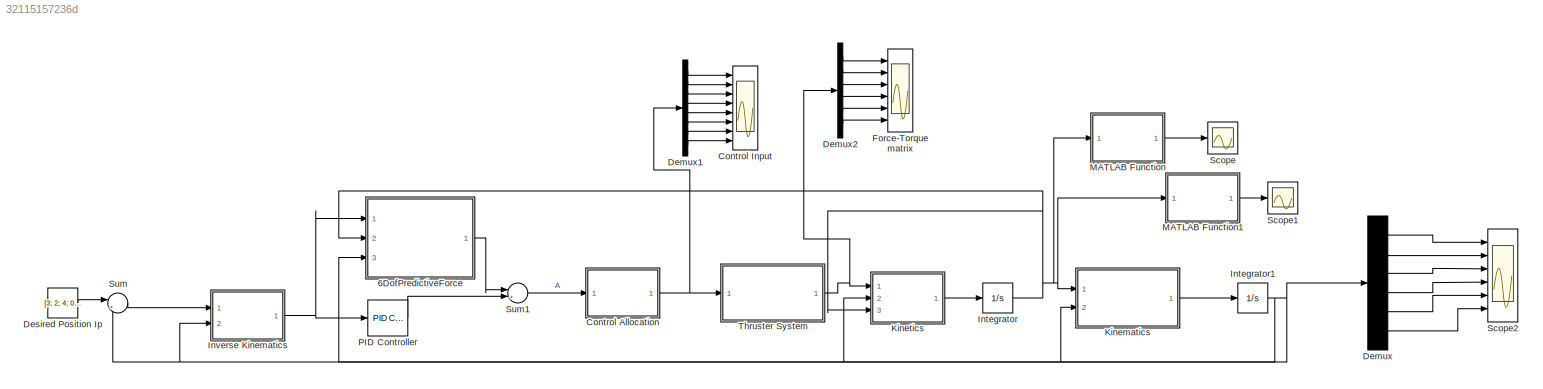
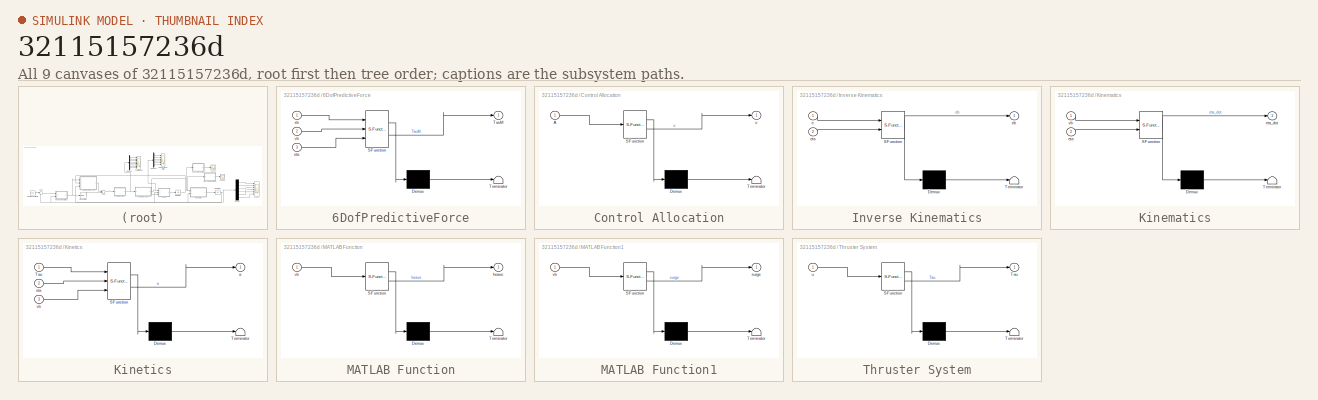
[diagram: thumbnail index - all 9 canvases of the model, root first then tree order]
MODEL slx_32115157236d
KIND model
CONFIG AbsTol = auto
CONFIG EnableMultiTasking = off
CONFIG FixedStep = auto
CONFIG MaxStep = auto
CONFIG MinStep = auto
CONFIG RelTol = 1e-3
CONFIG SampleTimeConstraint = Unconstrained
CONFIG SolverName = VariableStepAuto
CONFIG StartTime = 0.0
CONFIG StopTime = 200
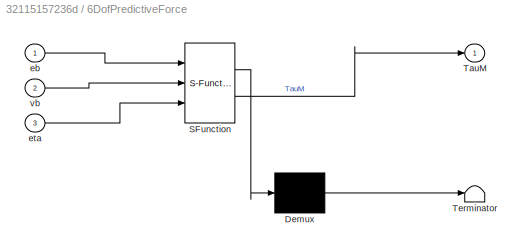
BLOCK [SubSystem] 6DofPredictiveForce
  ErrorFcn = Stateflow.Translate.translate
  PermitHierarchicalResolution = ExplicitOnly
  Ports = [3, 1]
  RequestExecContextInheritance = off
  SFBlockType = MATLAB Function
  TreatAsAtomicUnit = on
BLOCK [Demux] 6DofPredictiveForce/ Demux 
  Outputs = 1
  Ports = [1, 1]
BLOCK [S-Function] 6DofPredictiveForce/ SFunction 
  EnableBusSupport = on
  FunctionName = sf_sfun
  PortCounts = [3 2]
  Ports = [3, 2]
  SFcnIsStateOwnerBlock = off
  SFunctionDeploymentMode = off
  Tag = Stateflow S-Function 5
BLOCK [Terminator] 6DofPredictiveForce/ Terminator 
BLOCK [Outport] 6DofPredictiveForce/TauM
BLOCK [Inport] 6DofPredictiveForce/eb
BLOCK [Inport] 6DofPredictiveForce/eta
  Port = 3
BLOCK [Inport] 6DofPredictiveForce/vb
  Port = 2
BLOCK [SubSystem] Control Allocation
  ErrorFcn = Stateflow.Translate.translate
  PermitHierarchicalResolution = ExplicitOnly
  Ports = [1, 1]
  RequestExecContextInheritance = off
  SFBlockType = MATLAB Function
  TreatAsAtomicUnit = on
BLOCK [Demux] Control Allocation/ Demux 
  Outputs = 1
  Ports = [1, 1]
BLOCK [S-Function] Control Allocation/ SFunction 
  EnableBusSupport = on
  FunctionName = sf_sfun
  PortCounts = [1 2]
  Ports = [1, 2]
  SFcnIsStateOwnerBlock = off
  SFunctionDeploymentMode = off
  Tag = Stateflow S-Function 6
BLOCK [Terminator] Control Allocation/ Terminator 
BLOCK [Inport] Control Allocation/A
BLOCK [Outport] Control Allocation/u
BLOCK [Scope] Control Input
  Floating = off
  NumInputPorts = 8
  Ports = [8]
  ScopeSpecificationString = Simulink.scopes.TimeScopeBlockCfg('CurrentConfiguration', extmgr.ConfigurationSet(extmgr.Configuration('Core','General UI',true),extmgr.Configuration('Core','Source UI',true),extmgr.Configuration('Sources','WiredSimulink',true,'DataLoggingVariableName','ScopeData6'),extmgr.Configuration('Visuals','Time Domain',true,'SerializedDisplays',{struct('MinYLimReal','-0.19133','MaxYLimReal','0.13169','YLab...<+6221ch>
BLOCK [Demux] Demux
  Outputs = 6
  Ports = [1, 6]
BLOCK [Demux] Demux1
  Outputs = 8
  Ports = [1, 8]
BLOCK [Demux] Demux2
  Outputs = 6
  Ports = [1, 6]
BLOCK [Constant] Desired Position Ip
  Value = [3; 2; 4; 0; 0; 0]
BLOCK [Scope] Force-Torque matrix
  Floating = off
  NumInputPorts = 6
  Ports = [6]
  ScopeSpecificationString = Simulink.scopes.TimeScopeBlockCfg('CurrentConfiguration', extmgr.ConfigurationSet(extmgr.Configuration('Core','General UI',true),extmgr.Configuration('Core','Source UI',true),extmgr.Configuration('Sources','WiredSimulink',true,'DataLoggingVariableName','ScopeData1'),extmgr.Configuration('Visuals','Time Domain',true,'SerializedDisplays',{struct('MinYLimReal','-0.19133','MaxYLimReal','0.13169','YLab...<+4815ch>
BLOCK [Integrator] Integrator
  InitialCondition = [0;0;0;0;0;0]
  Ports = [1, 1]
BLOCK [Integrator] Integrator1
  InitialCondition = [0;0;0;0;0;0]
  Ports = [1, 1]
BLOCK [SubSystem] Inverse Kinematics
  ErrorFcn = Stateflow.Translate.translate
  PermitHierarchicalResolution = ExplicitOnly
  Ports = [2, 1]
  RequestExecContextInheritance = off
  SFBlockType = MATLAB Function
  TreatAsAtomicUnit = on
BLOCK [Demux] Inverse Kinematics/ Demux 
  Outputs = 1
  Ports = [1, 1]
BLOCK [S-Function] Inverse Kinematics/ SFunction 
  EnableBusSupport = on
  FunctionName = sf_sfun
  PortCounts = [2 2]
  Ports = [2, 2]
  SFcnIsStateOwnerBlock = off
  SFunctionDeploymentMode = off
  Tag = Stateflow S-Function 4
BLOCK [Terminator] Inverse Kinematics/ Terminator 
BLOCK [Inport] Inverse Kinematics/e
BLOCK [Outport] Inverse Kinematics/eb
BLOCK [Inport] Inverse Kinematics/eta
  Port = 2
BLOCK [SubSystem] Kinematics
  ErrorFcn = Stateflow.Translate.translate
  PermitHierarchicalResolution = ExplicitOnly
  Ports = [2, 1]
  RequestExecContextInheritance = off
  SFBlockType = MATLAB Function
  TreatAsAtomicUnit = on
BLOCK [Demux] Kinematics/ Demux 
  Outputs = 1
  Ports = [1, 1]
BLOCK [S-Function] Kinematics/ SFunction 
  EnableBusSupport = on
  FunctionName = sf_sfun
  PortCounts = [2 2]
  Ports = [2, 2]
  SFcnIsStateOwnerBlock = off
  SFunctionDeploymentMode = off
  Tag = Stateflow S-Function 3
BLOCK [Terminator] Kinematics/ Terminator 
BLOCK [Inport] Kinematics/eta
  Port = 2
BLOCK [Outport] Kinematics/eta_dot
BLOCK [Inport] Kinematics/vb
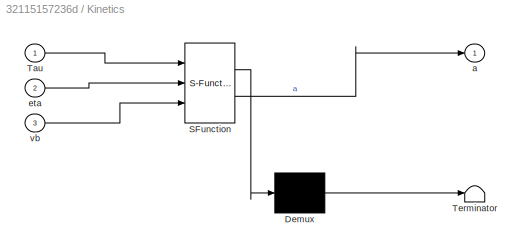
BLOCK [SubSystem] Kinetics
  ErrorFcn = Stateflow.Translate.translate
  PermitHierarchicalResolution = ExplicitOnly
  Ports = [3, 1]
  RequestExecContextInheritance = off
  SFBlockType = MATLAB Function
  TreatAsAtomicUnit = on
BLOCK [Demux] Kinetics/ Demux 
  Outputs = 1
  Ports = [1, 1]
BLOCK [S-Function] Kinetics/ SFunction 
  EnableBusSupport = on
  FunctionName = sf_sfun
  PortCounts = [3 2]
  Ports = [3, 2]
  SFcnIsStateOwnerBlock = off
  SFunctionDeploymentMode = off
  Tag = Stateflow S-Function 1
BLOCK [Terminator] Kinetics/ Terminator 
BLOCK [Inport] Kinetics/Tau
BLOCK [Outport] Kinetics/a
BLOCK [Inport] Kinetics/eta
  Port = 2
BLOCK [Inport] Kinetics/vb
  Port = 3
BLOCK [SubSystem] MATLAB Function
  ErrorFcn = Stateflow.Translate.translate
  PermitHierarchicalResolution = ExplicitOnly
  Ports = [1, 1]
  RequestExecContextInheritance = off
  SFBlockType = MATLAB Function
  TreatAsAtomicUnit = on
BLOCK [Demux] MATLAB Function/ Demux 
  Outputs = 1
  Ports = [1, 1]
BLOCK [S-Function] MATLAB Function/ SFunction 
  EnableBusSupport = on
  FunctionName = sf_sfun
  PortCounts = [1 2]
  Ports = [1, 2]
  SFcnIsStateOwnerBlock = off
  SFunctionDeploymentMode = off
  Tag = Stateflow S-Function 7
BLOCK [Terminator] MATLAB Function/ Terminator 
BLOCK [Outport] MATLAB Function/heave
BLOCK [Inport] MATLAB Function/vb
BLOCK [SubSystem] MATLAB Function1
  ErrorFcn = Stateflow.Translate.translate
  PermitHierarchicalResolution = ExplicitOnly
  Ports = [1, 1]
  RequestExecContextInheritance = off
  SFBlockType = MATLAB Function
  TreatAsAtomicUnit = on
BLOCK [Demux] MATLAB Function1/ Demux 
  Outputs = 1
  Ports = [1, 1]
BLOCK [S-Function] MATLAB Function1/ SFunction 
  EnableBusSupport = on
  FunctionName = sf_sfun
  PortCounts = [1 2]
  Ports = [1, 2]
  SFcnIsStateOwnerBlock = off
  SFunctionDeploymentMode = off
  Tag = Stateflow S-Function 8
BLOCK [Terminator] MATLAB Function1/ Terminator 
BLOCK [Outport] MATLAB Function1/surge
BLOCK [Inport] MATLAB Function1/vb
BLOCK [Reference] PID Controller  REF=slpidlib/PID Controller
  Ports = [1, 1]
  SourceBlock = slpidlib/PID Controller
  SourceProductBaseCode = SL
  SourceType = PID 1dof
BLOCK [Scope] Scope
  Floating = off
  NumInputPorts = 1
  Ports = [1]
  ScopeSpecificationString = Simulink.scopes.TimeScopeBlockCfg('CurrentConfiguration', extmgr.ConfigurationSet(extmgr.Configuration('Core','General UI',true),extmgr.Configuration('Core','Source UI',true),extmgr.Configuration('Sources','WiredSimulink',true,'DataLoggingVariableName','ScopeData2'),extmgr.Configuration('Visuals','Time Domain',true,'SerializedDisplays',{struct('MinYLimReal','-0.03407','MaxYLimReal','0.27493','YLab...<+1729ch>
BLOCK [Scope] Scope1
  Floating = off
  NumInputPorts = 1
  Ports = [1]
  ScopeSpecificationString = Simulink.scopes.TimeScopeBlockCfg('CurrentConfiguration', extmgr.ConfigurationSet(extmgr.Configuration('Core','General UI',true),extmgr.Configuration('Core','Source UI',true),extmgr.Configuration('Sources','WiredSimulink',true,'DataLoggingVariableName','ScopeData3'),extmgr.Configuration('Visuals','Time Domain',true,'SerializedDisplays',{struct('MinYLimReal','-0.13375','MaxYLimReal','0.82051','YLab...<+1734ch>
BLOCK [Scope] Scope2
  Floating = off
  NumInputPorts = 6
  Ports = [6]
  ScopeSpecificationString = Simulink.scopes.TimeScopeBlockCfg('CurrentConfiguration', extmgr.ConfigurationSet(extmgr.Configuration('Core','General UI',true),extmgr.Configuration('Core','Source UI',true),extmgr.Configuration('Sources','WiredSimulink',true,'DataLoggingVariableName','ScopeData4'),extmgr.Configuration('Visuals','Time Domain',true,'SerializedDisplays',{struct('MinYLimReal','-0.61973','MaxYLimReal','5.57761','YLab...<+4805ch>
BLOCK [Sum] Sum
  Inputs = |+-
  Ports = [2, 1]
BLOCK [Sum] Sum1
  Inputs = |++
  Ports = [2, 1]
BLOCK [SubSystem] Thruster System
  ErrorFcn = Stateflow.Translate.translate
  PermitHierarchicalResolution = ExplicitOnly
  Ports = [1, 1]
  RequestExecContextInheritance = off
  SFBlockType = MATLAB Function
  TreatAsAtomicUnit = on
BLOCK [Demux] Thruster System/ Demux 
  Outputs = 1
  Ports = [1, 1]
BLOCK [S-Function] Thruster System/ SFunction 
  EnableBusSupport = on
  FunctionName = sf_sfun
  PortCounts = [1 2]
  Ports = [1, 2]
  SFcnIsStateOwnerBlock = off
  SFunctionDeploymentMode = off
  Tag = Stateflow S-Function 2
BLOCK [Terminator] Thruster System/ Terminator 
BLOCK [Outport] Thruster System/Tau
BLOCK [Inport] Thruster System/u
LINE 6DofPredictiveForce:1 -> Sum1:1
NET Control Allocation:1 -> Demux1:1, Thruster System:1
LINE Demux1:1 -> Control Input:1
LINE Demux1:2 -> Control Input:2
LINE Demux1:3 -> Control Input:3
LINE Demux1:4 -> Control Input:4
LINE Demux1:5 -> Control Input:5
LINE Demux1:6 -> Control Input:6
LINE Demux1:7 -> Control Input:7
LINE Demux1:8 -> Control Input:8
LINE Demux2:1 -> Force-Torque matrix:1
LINE Demux2:2 -> Force-Torque matrix:2
LINE Demux2:3 -> Force-Torque matrix:3
LINE Demux2:4 -> Force-Torque matrix:4
LINE Demux2:5 -> Force-Torque matrix:5
LINE Demux2:6 -> Force-Torque matrix:6
LINE Demux:1 -> Scope2:1
LINE Demux:2 -> Scope2:2
LINE Demux:3 -> Scope2:3
LINE Demux:4 -> Scope2:4
LINE Demux:5 -> Scope2:5
LINE Demux:6 -> Scope2:6
LINE Desired Position Ip:1 -> Sum:1
NET Integrator1:1 -> 6DofPredictiveForce:3, Demux:1, Inverse Kinematics:2, Kinematics:2, Kinetics:2, Sum:2
NET Integrator:1 -> 6DofPredictiveForce:2, Kinematics:1, Kinetics:3, MATLAB Function1:1, MATLAB Function:1
NET Inverse Kinematics:1 -> 6DofPredictiveForce:1, PID Controller:1
LINE Kinematics:1 -> Integrator1:1
LINE Kinetics:1 -> Integrator:1
LINE MATLAB Function1:1 -> Scope1:1
LINE MATLAB Function:1 -> Scope:1
LINE PID Controller:1 -> Sum1:2
LINE Sum1:1 -> Control Allocation:1
LINE Sum:1 -> Inverse Kinematics:1
NET Thruster System:1 -> Demux2:1, Kinetics:1
note: NET lines group one-source signal fan-out (src -> all destinations, sorted); 1:1 wires keep LINE
CHART Thruster System states=1 transitions=1
  STATE_LABEL 'eML_blk_kernel()'
  STATE_LABEL "SCRIPT:\nfunction Tau = fcn(u)\n\nT=[0.707,0.707,-0.707,-0.707,0,0,0,0;\n   -0.707,0.707,-0.707,0.707,0,0,0,0;\n   0,0,0,0,-1,1,1,-1;\n   0.06,-0.06,0.06,-0.06,-0.218,-0.218,0.218,0.218;\n   0.06,0.06,-0.06,-0.06,0.120,-0.120,0.120,-0.120;\n   -0.1888,0.1888,0.1888,-0.1888,0,0,0,0];\n\nK=diag([40,40,40,40,40,40,40,40]);\n\n%T_star=(T.')*inv(T*(T.'));\n\nTau=T*(K*u);\n"
CHART Kinematics states=1 transitions=1
  STATE_LABEL 'eML_blk_kernel()'
  STATE_LABEL 'SCRIPT:\nfunction eta_dot = fcn(vb,eta)\nphi=eta(4);\ntheta=eta(5);\npsi=eta(6);\nR=[cos(psi)*cos(theta),-sin(psi)*cos(phi)+cos(psi)*sin(theta)*sin(phi),sin(psi)*sin(phi)+cos(psi)*cos(phi)*sin(theta);\n    sin(psi)*cos(theta),cos(psi)*cos(phi)+sin(psi)*sin(theta)*sin(phi),-cos(psi)*sin(phi)+sin(theta)*sin(psi)*cos(phi);\n    -sin(theta),cos(theta)*sin(phi),cos(theta)*cos(phi)];\n\nT=[1,sin(phi)*tan(theta),...<+143ch>'
CHART Inverse Kinematics states=1 transitions=1
  STATE_LABEL 'eML_blk_kernel()'
  STATE_LABEL 'SCRIPT:\nfunction eb = fcn(e,eta)\nphi=eta(4);\ntheta=eta(5);\npsi=eta(6);\nR=[cos(psi)*cos(theta),-sin(psi)*cos(phi)+cos(psi)*sin(theta)*sin(phi),sin(psi)*sin(phi)+cos(psi)*cos(phi)*sin(theta);\n    sin(psi)*cos(theta),cos(psi)*cos(phi)+sin(psi)*sin(theta)*sin(phi),-cos(psi)*sin(phi)+sin(theta)*sin(psi)*cos(phi);\n    -sin(theta),cos(theta)*sin(phi),cos(theta)*cos(phi)];\n\nT=[1,sin(phi)*tan(theta),cos(ph...<+134ch>'
CHART 6DofPredictiveForce states=1 transitions=1
  STATE_LABEL 'eML_blk_kernel()'
  STATE_LABEL 'SCRIPT:\nfunction TauM = fcn(eb,vb,eta)\nphi=eta(4);\ntheta=eta(5);\n%psi=eta(6);\nu=vb(1);\nv=vb(2);\nw=vb(3);\np=vb(4);\nq=vb(5);\nr=vb(6);\nm=11.5;\nzg=0.02;\nIx=0.16;\nIy=0.16;\nIz=0.16;\nW=112.8;\nB=114.8;\nM=[m,0,0,0,m*zg,0;\n    0,m,0,-m*zg,0,0;\n    0,0,m,0,0,0;\n    0,-m*zg,0,Ix,0,0;\n    m*zg,0,0,0,Iy,0;\n    0,0,0,0,0,Iz\n    ];\nMA=diag([5.5,12.7,14.57,0.12,0.12,0.12]);\nMeff=M+MA;\nvc=[0.1;0.1;0;0;0;0];\nCRB=[0,...<+741ch>'
CHART Control Allocation states=1 transitions=1
  STATE_LABEL 'eML_blk_kernel()'
  STATE_LABEL "SCRIPT:\nfunction u = fcn(A)\nT=[0.707,0.707,-0.707,-0.707,0,0,0,0;\n   -0.707,0.707,-0.707,0.707,0,0,0,0;\n   0,0,0,0,-1,1,1,-1;\n   0.06,-0.06,0.06,-0.06,-0.218,-0.218,0.218,0.218;\n   0.06,0.06,-0.06,-0.06,0.120,-0.120,0.120,-0.120;\n   -0.1888,0.1888,0.1888,-0.1888,0,0,0,0];\n\nK=diag([40,40,40,40,40,40,40,40]);\n\nT_star=(T.')*inv(T*(T.'));\n\nu=inv(K)*T_star*A;\n\n"
CHART MATLAB Function states=1 transitions=1
  STATE_LABEL 'eML_blk_kernel()'
  STATE_LABEL 'SCRIPT:\nfunction heave = fcn(vb)\nheave=vb(3);\n'
CHART MATLAB Function1 states=1 transitions=1
  STATE_LABEL 'eML_blk_kernel()'
  STATE_LABEL 'SCRIPT:\nfunction surge = fcn(vb)\nsurge=vb(1);'
CHART Kinetics states=1 transitions=1
  STATE_LABEL 'eML_blk_kernel()'
  STATE_LABEL 'SCRIPT:\nfunction a = fcn(Tau,eta,vb)\n\nphi=eta(4);\ntheta=eta(5);\n%psi=eta(6);\nu=vb(1);\nv=vb(2);\nw=vb(3);\np=vb(4);\nq=vb(5);\nr=vb(6);\nm=11.5;\nW=112.8;\nB=114.8;\nIx=0.16;\nIy=0.16;\nIz=0.16;\nzg=0.02;\nM=[m,0,0,0,m*zg,0;\n    0,m,0,-m*zg,0,0;\n    0,0,m,0,0,0;\n    0,-m*zg,0,Ix,0,0;\n    m*zg,0,0,0,Iy,0;\n    0,0,0,0,0,Iz\n    ];\nMA=diag([5.5,12.7,14.57,0.12,0.12,0.12]);\nMeff=M+MA;\nvc=[0.1;0.1;0;0;0;0];\nCRB=[0,0...<+629ch>'
CHART  states=0 transitions=0
CHART  states=0 transitions=0
CHART  states=0 transitions=0
CHART  states=0 transitions=0
CHART  states=0 transitions=0
CHART  states=0 transitions=0
CHART  states=0 transitions=0
CHART  states=0 transitions=0
